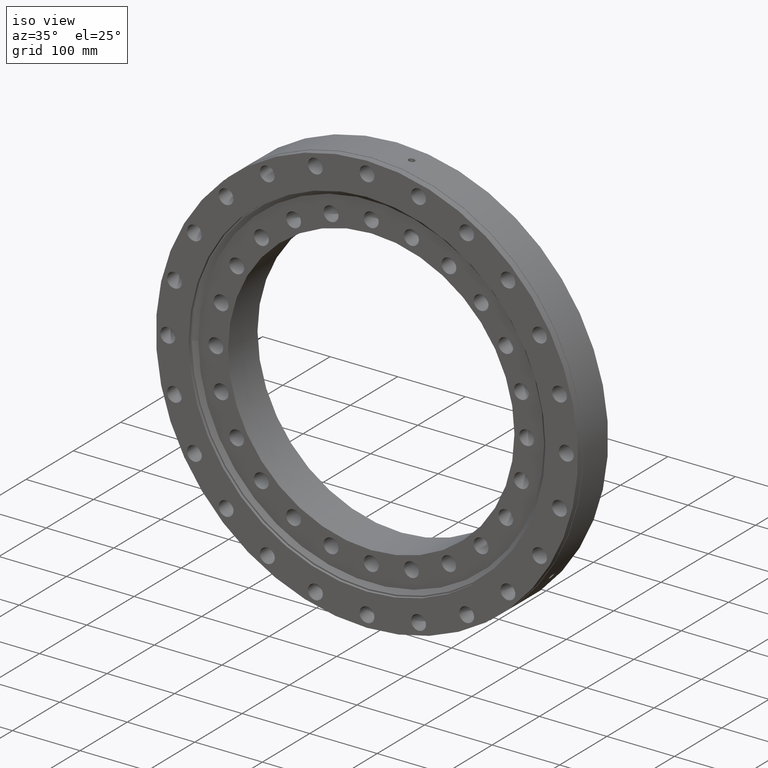
[diagram: clean part render]
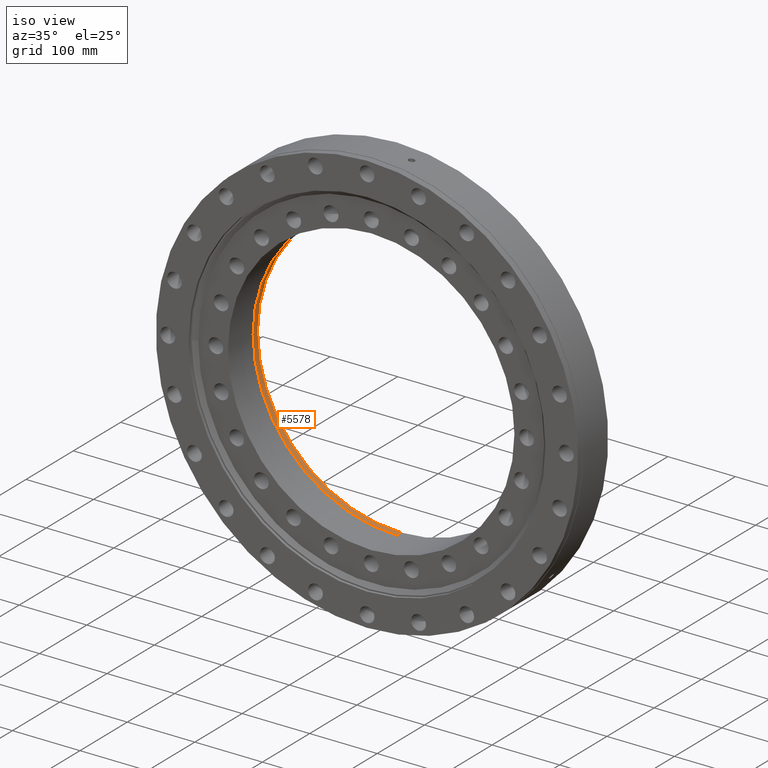
[diagram: same view with one face highlighted and labeled with its STEP entity id]
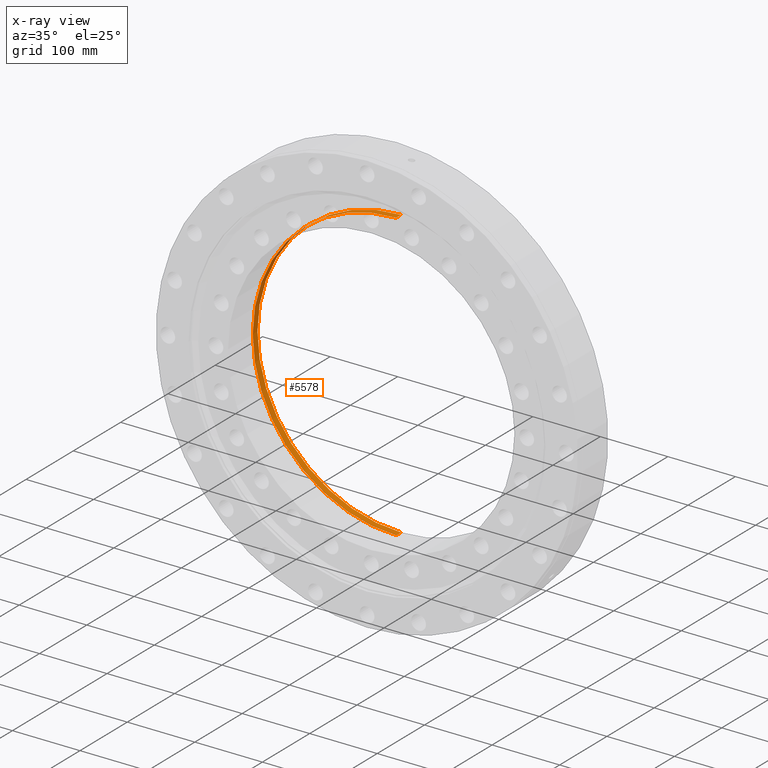
[diagram: x-ray of the same camera — body ghosted, the highlighted face saturated]
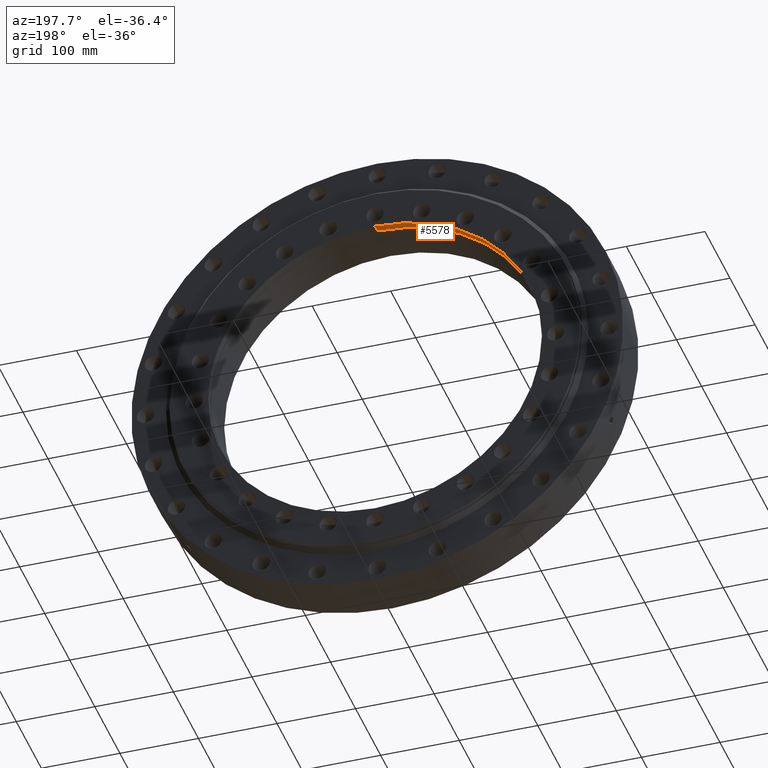
[diagram: same view with one face highlighted and labeled with its STEP entity id]
A machine part, iso view. The second image highlights one B-rep face of the part: STEP entity #5578.
The next image is the same camera in x-ray: the body ghosted, the highlighted face saturated — about 0% of this face is hidden behind the body in this view.
A second angle (auxiliary view) of the same face is appended — the face is thin or edge-on in the first view.
In plain terms, the highlighted cylindrical surface (partial cylindrical patch) has radius 212.5 mm, axis along (-0, 1, -0).
Its self-contained STEP definition (entity closure, byte-faithful):
#25 = VERTEX_POINT ( 'NONE', #165 ) ;
#134 = EDGE_CURVE ( 'NONE', #969, #3762, #3828, .T. ) ;
#165 = CARTESIAN_POINT ( 'NONE',  ( 2.602374448188125100E-014, 25.99999999999993200, -212.4999999999999700 ) ) ;
#423 = DIRECTION ( 'NONE',  ( -0.0000000000000000000, 1.000000000000000000, -0.0000000000000000000 ) ) ;
#585 = DIRECTION ( 'NONE',  ( -0.0000000000000000000, 1.000000000000000000, -0.0000000000000000000 ) ) ;
#830 = ORIENTED_EDGE ( 'NONE', *, *, #134, .F. ) ;
#847 = ORIENTED_EDGE ( 'NONE', *, *, #5485, .F. ) ;
#859 = ORIENTED_EDGE ( 'NONE', *, *, #2824, .T. ) ;
#969 = VERTEX_POINT ( 'NONE', #5233 ) ;
#970 = DIRECTION ( 'NONE',  ( 0.0000000000000000000, 0.0000000000000000000, 1.000000000000000000 ) ) ;
#1002 = VECTOR ( 'NONE', #423, 1000.000000000000000 ) ;
#1109 = CARTESIAN_POINT ( 'NONE',  ( 0.0000000000000000000, 25.99999999999993200, 0.0000000000000000000 ) ) ;
#1377 = DIRECTION ( 'NONE',  ( -0.0000000000000000000, 1.000000000000000000, -0.0000000000000000000 ) ) ;
#1484 = CARTESIAN_POINT ( 'NONE',  ( 2.602374448188125100E-014, 70.62343277129268400, -212.4999999999999700 ) ) ;
#1562 = CARTESIAN_POINT ( 'NONE',  ( 0.0000000000000000000, 35.99999999999994300, 0.0000000000000000000 ) ) ;
#1570 = DIRECTION ( 'NONE',  ( 0.0000000000000000000, -1.000000000000000000, 2.727064569436389700E-017 ) ) ;
#1576 = DIRECTION ( 'NONE',  ( 0.0000000000000000000, -3.265361837132814100E-017, -1.000000000000000000 ) ) ;
#1871 = VECTOR ( 'NONE', #585, 1000.000000000000000 ) ;
#2104 = ORIENTED_EDGE ( 'NONE', *, *, #2329, .F. ) ;
#2272 = AXIS2_PLACEMENT_3D ( 'NONE', #1109, #1377, #970 ) ;
#2329 = EDGE_CURVE ( 'NONE', #25, #969, #5241, .T. ) ;
#2535 = FACE_OUTER_BOUND ( 'NONE', #4135, .T. ) ;
#2587 = CARTESIAN_POINT ( 'NONE',  ( 0.0000000000000000000, 70.62343277129268400, 0.0000000000000000000 ) ) ;
#2653 = DIRECTION ( 'NONE',  ( 0.0000000000000000000, 0.0000000000000000000, 1.000000000000000000 ) ) ;
#2673 = DIRECTION ( 'NONE',  ( -0.0000000000000000000, 1.000000000000000000, -0.0000000000000000000 ) ) ;
#2688 = CYLINDRICAL_SURFACE ( 'NONE', #4344, 212.4999999999999700 ) ;
#2822 = AXIS2_PLACEMENT_3D ( 'NONE', #1562, #1570, #1576 ) ;
#2824 = EDGE_CURVE ( 'NONE', #25, #3138, #4526, .T. ) ;
#3138 = VERTEX_POINT ( 'NONE', #4886 ) ;
#3183 = CARTESIAN_POINT ( 'NONE',  ( 0.0000000000000000000, 35.99999999999995000, 212.4999999999999700 ) ) ;
#3762 = VERTEX_POINT ( 'NONE', #3183 ) ;
#3828 = LINE ( 'NONE', #5391, #1871 ) ;
#4135 = EDGE_LOOP ( 'NONE', ( #2104, #859, #847, #830 ) ) ;
#4344 = AXIS2_PLACEMENT_3D ( 'NONE', #2587, #2673, #2653 ) ;
#4463 = CIRCLE ( 'NONE', #2822, 212.4999999999999700 ) ;
#4526 = LINE ( 'NONE', #1484, #1002 ) ;
#4886 = CARTESIAN_POINT ( 'NONE',  ( 2.602374448188125100E-014, 35.99999999999993600, -212.4999999999999700 ) ) ;
#5233 = CARTESIAN_POINT ( 'NONE',  ( 0.0000000000000000000, 25.99999999999993200, 212.4999999999999700 ) ) ;
#5241 = CIRCLE ( 'NONE', #2272, 212.4999999999999700 ) ;
#5391 = CARTESIAN_POINT ( 'NONE',  ( 0.0000000000000000000, 70.62343277129268400, 212.4999999999999700 ) ) ;
#5485 = EDGE_CURVE ( 'NONE', #3762, #3138, #4463, .T. ) ;
#5578 = ADVANCED_FACE ( 'NONE', ( #2535 ), #2688, .F. ) ;